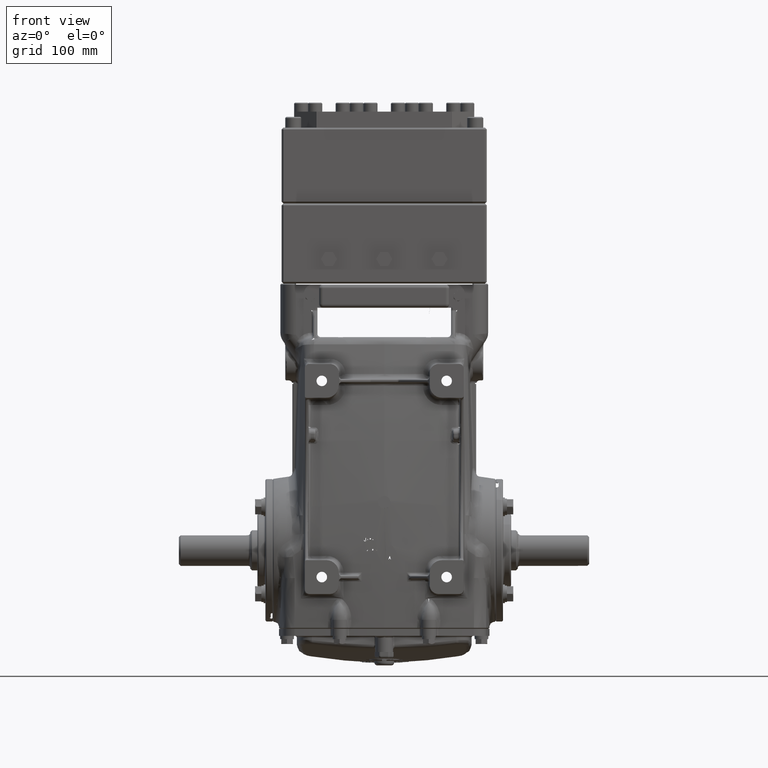
[diagram: clean part render]
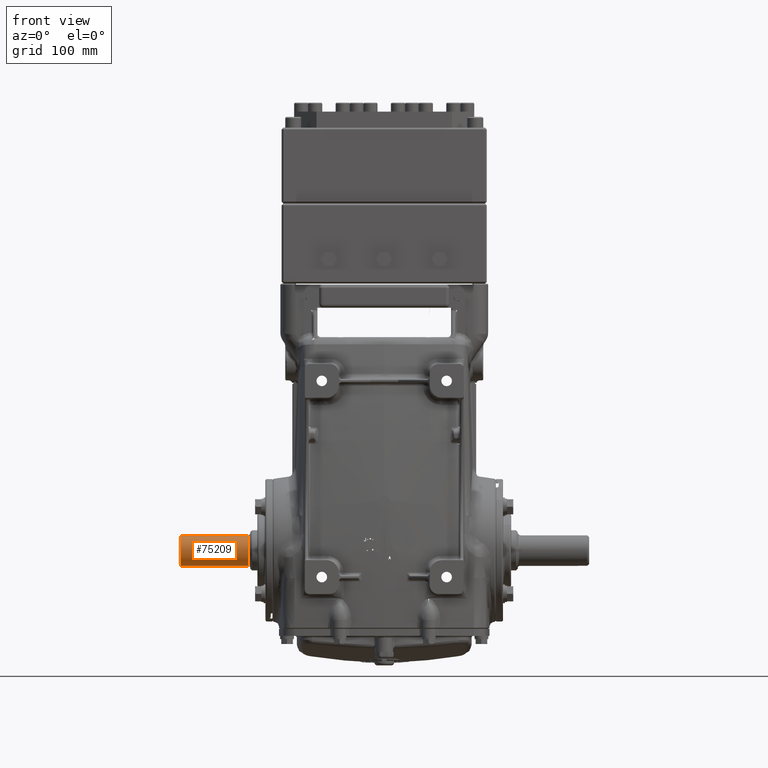
[diagram: same view with one face highlighted and labeled with its STEP entity id]
A machine part, front view. The second image highlights one B-rep face of the part: STEP entity #75209.
In plain terms, the highlighted cylindrical surface (edge-blend (fillet) strip) has radius 17.5 mm, axis along (1, -0, -0).
Its self-contained STEP definition (entity closure, byte-faithful):
#802 = VECTOR ( 'NONE', #33675, 39.37007874015748143 ) ;
#1292 = DIRECTION ( 'NONE',  ( 1.000000000000000000, -0.0000000000000000000, -0.0000000000000000000 ) ) ;
#2310 = CARTESIAN_POINT ( 'NONE',  ( -6.059776295727885120, -0.1900330164374030018, 0.6622597479947376353 ) ) ;
#3429 = AXIS2_PLACEMENT_3D ( 'NONE', #117820, #35975, #72423 ) ;
#9379 = VERTEX_POINT ( 'NONE', #100084 ) ;
#10237 = FACE_OUTER_BOUND ( 'NONE', #85011, .T. ) ;
#11243 = CARTESIAN_POINT ( 'NONE',  ( -6.011528193143838017, -0.1694831979805707378, 0.6678242842203216956 ) ) ;
#11636 = ORIENTED_EDGE ( 'NONE', *, *, #21261, .T. ) ;
#12866 = ORIENTED_EDGE ( 'NONE', *, *, #108866, .T. ) ;
#13781 = DIRECTION ( 'NONE',  ( 1.000000000000000000, -0.0000000000000000000, -0.0000000000000000000 ) ) ;
#19385 = VERTEX_POINT ( 'NONE', #23350 ) ;
#19482 = DIRECTION ( 'NONE',  ( -1.000000000000000000, -0.0000000000000000000, -0.0000000000000000000 ) ) ;
#21261 = EDGE_CURVE ( 'NONE', #94960, #34748, #79100, .T. ) ;
#23350 = CARTESIAN_POINT ( 'NONE',  ( -8.986220472440942686, 1.247019192167489158E-16, -0.6889763779527559029 ) ) ;
#29701 = CARTESIAN_POINT ( 'NONE',  ( -6.112204724409446399, -0.1968503937007873017, 0.6602562925688360007 ) ) ;
#30134 = ORIENTED_EDGE ( 'NONE', *, *, #90690, .T. ) ;
#33675 = DIRECTION ( 'NONE',  ( -1.000000000000000000, 0.0000000000000000000, 0.0000000000000000000 ) ) ;
#34748 = VERTEX_POINT ( 'NONE', #72322 ) ;
#35975 = DIRECTION ( 'NONE',  ( 1.000000000000000000, 0.0000000000000000000, 0.0000000000000000000 ) ) ;
#37627 = DIRECTION ( 'NONE',  ( 0.0000000000000000000, 0.0000000000000000000, -1.000000000000000000 ) ) ;
#38636 = CARTESIAN_POINT ( 'NONE',  ( -6.070222117738364176, -0.1926124457685803870, 0.6615073834268481168 ) ) ;
#39043 = ORIENTED_EDGE ( 'NONE', *, *, #82558, .T. ) ;
#46611 = CYLINDRICAL_SURFACE ( 'NONE', #47176, 0.6889763779527561249 ) ;
#47176 = AXIS2_PLACEMENT_3D ( 'NONE', #83054, #1292, #37627 ) ;
#47612 = CARTESIAN_POINT ( 'NONE',  ( -6.030127828780928567, -0.1792308610406752600, 0.6652744752677079987 ) ) ;
#48051 = ORIENTED_EDGE ( 'NONE', *, *, #110338, .T. ) ;
#48580 = B_SPLINE_CURVE_WITH_KNOTS ( 'NONE', 3,
 ( #56571, #93078, #11243, #47612, #84054, #2310, #38636, #75112, #111529, #29701 ),
 .UNSPECIFIED., .F., .F.,
 ( 4, 2, 2, 2, 4 ),
 ( 0.004642441928650610158, 0.005446708459051022647, 0.006250974989451436002, 0.007055241519851849358, 0.007859508050252261846 ),
 .UNSPECIFIED. ) ;
#53395 = AXIS2_PLACEMENT_3D ( 'NONE', #101269, #19482, #55844 ) ;
#54830 = CIRCLE ( 'NONE', #3429, 0.6889763779527561249 ) ;
#55844 = DIRECTION ( 'NONE',  ( 0.0000000000000000000, 0.0000000000000000000, -1.000000000000000000 ) ) ;
#56571 = CARTESIAN_POINT ( 'NONE',  ( -5.994094488189671388, -0.1574803149611523900, 0.6707372061967603605 ) ) ;
#59067 = LINE ( 'NONE', #95590, #99387 ) ;
#72322 = CARTESIAN_POINT ( 'NONE',  ( -8.986220472440942686, -0.1968503937007873017, 0.6602562925688360007 ) ) ;
#72423 = DIRECTION ( 'NONE',  ( 0.0000000000000000000, 0.0000000000000000000, 1.000000000000000000 ) ) ;
#75112 = CARTESIAN_POINT ( 'NONE',  ( -6.091116253239418299, -0.1960034946412028412, 0.6605105621272270300 ) ) ;
#75209 = ADVANCED_FACE ( 'NONE', ( #10237 ), #46611, .T. ) ;
#79100 = LINE ( 'NONE', #115498, #802 ) ;
#82558 = EDGE_CURVE ( 'NONE', #108214, #94960, #48580, .T. ) ;
#83054 = CARTESIAN_POINT ( 'NONE',  ( -9.064960629921257507, 1.247019192167489158E-16, 2.958535915340133546E-16 ) ) ;
#83599 = CARTESIAN_POINT ( 'NONE',  ( -6.112204724409446399, -0.1968503937007873017, 0.6602562925688360007 ) ) ;
#84054 = CARTESIAN_POINT ( 'NONE',  ( -6.039773842729889708, -0.1833440886678323889, 0.6641426550831635023 ) ) ;
#85011 = EDGE_LOOP ( 'NONE', ( #30134, #48051, #12866, #39043, #11636 ) ) ;
#90690 = EDGE_CURVE ( 'NONE', #34748, #19385, #54830, .T. ) ;
#93078 = CARTESIAN_POINT ( 'NONE',  ( -6.002503198579441701, -0.1637868477534210887, 0.6692565148600286840 ) ) ;
#94960 = VERTEX_POINT ( 'NONE', #83599 ) ;
#95590 = CARTESIAN_POINT ( 'NONE',  ( -9.064960629921257507, 1.247019192167489158E-16, -0.6889763779527559029 ) ) ;
#99387 = VECTOR ( 'NONE', #13781, 39.37007874015748143 ) ;
#100084 = CARTESIAN_POINT ( 'NONE',  ( -5.994094488188974168, 1.247019192167489158E-16, -0.6889763779527559029 ) ) ;
#101177 = CARTESIAN_POINT ( 'NONE',  ( -5.994094488189671388, -0.1574803149611523900, 0.6707372061967603605 ) ) ;
#101269 = CARTESIAN_POINT ( 'NONE',  ( -5.994094488188974168, 1.247019192167489158E-16, 2.958535915340133546E-16 ) ) ;
#104901 = CIRCLE ( 'NONE', #53395, 0.6889763779527561249 ) ;
#108214 = VERTEX_POINT ( 'NONE', #101177 ) ;
#108866 = EDGE_CURVE ( 'NONE', #9379, #108214, #104901, .T. ) ;
#110338 = EDGE_CURVE ( 'NONE', #19385, #9379, #59067, .T. ) ;
#111529 = CARTESIAN_POINT ( 'NONE',  ( -6.101628070471314835, -0.1968503937007873295, 0.6602562925688360007 ) ) ;
#115498 = CARTESIAN_POINT ( 'NONE',  ( -9.064960629921257507, -0.1968503937007873017, 0.6602562925688360007 ) ) ;
#117820 = CARTESIAN_POINT ( 'NONE',  ( -8.986220472440942686, 1.247019192167489158E-16, 2.958535915340133546E-16 ) ) ;